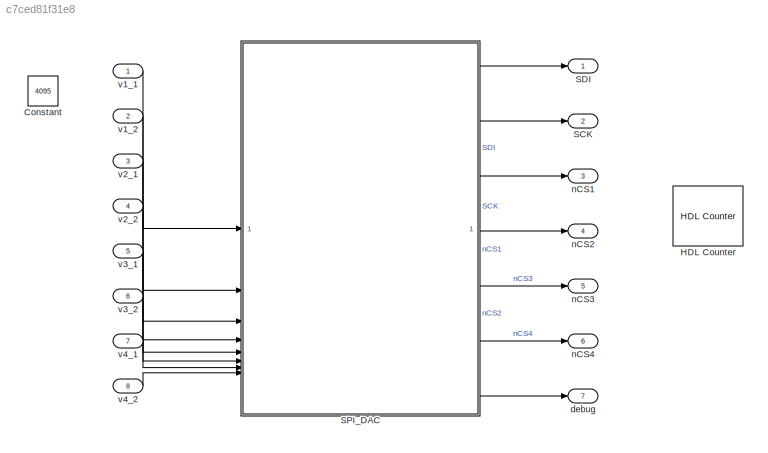
MODEL slx_c7ced81f31e8
KIND model
CONFIG AbsTol = auto
CONFIG EnableMultiTasking = off
CONFIG FixedStep = auto
CONFIG MaxStep = auto
CONFIG MinStep = auto
CONFIG RelTol = 1e-3
CONFIG SampleTimeConstraint = Unconstrained
CONFIG SolverName = VariableStepAuto
CONFIG StartTime = 0.0
CONFIG StopTime = 10.0
BLOCK [Constant] Constant
  Commented = on
  OutDataTypeStr = uint16
  Value = 4095
BLOCK [Reference] HDL Counter  REF=hdlsllib/Sources/HDL Counter
  Commented = on
  SourceBlock = hdlsllib/Sources/HDL Counter
  SourceType = HDL Counter
BLOCK [Outport] SCK
  Port = 2
BLOCK [Outport] SDI
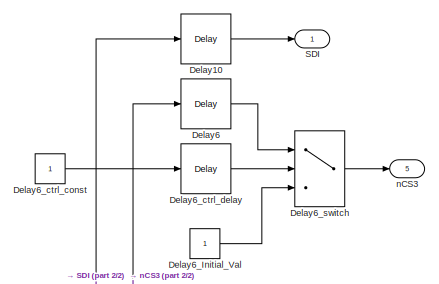
[diagram: SPI_DAC - part 1/2, top right region]
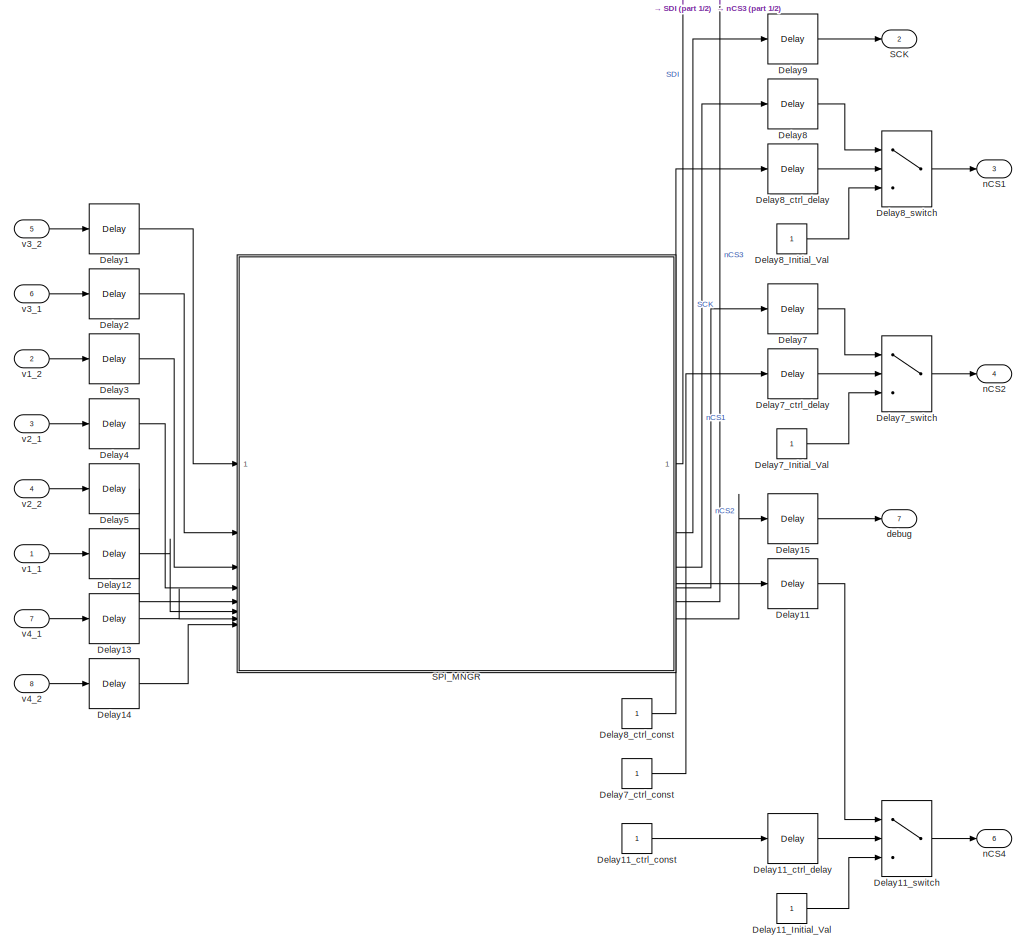
[diagram: SPI_DAC - part 2/2, most of the canvas]
BLOCK [SubSystem] SPI_DAC
  TreatAsAtomicUnit = on
BLOCK [Delay] SPI_DAC/Delay1
  DelayLength = double(1)
  InitialCondition = 0
  InputPortMap = u0
  SampleTime = 1.8e-06
BLOCK [Delay] SPI_DAC/Delay10
  DelayLength = double(1)
  InitialCondition = 0
  InputPortMap = u0
  SampleTime = 1.8e-06
BLOCK [Delay] SPI_DAC/Delay11
  DelayLength = double(1)
  InitialCondition = 0
  InputPortMap = u0
  SampleTime = 1.8e-06
BLOCK [Constant] SPI_DAC/Delay11_Initial_Val
  OutDataTypeStr = boolean
  SampleTime = 1.8e-06
BLOCK [Constant] SPI_DAC/Delay11_ctrl_const
  OutDataTypeStr = boolean
  SampleTime = 1.8e-06
BLOCK [Delay] SPI_DAC/Delay11_ctrl_delay
  DelayLength = double(1)
  InitialCondition = 0
  InputPortMap = u0
  SampleTime = 1.8e-06
BLOCK [Switch] SPI_DAC/Delay11_switch
  Criteria = u2 ~= 0
  InputSameDT = off
  OutDataTypeStr = boolean
  SampleTime = 1.8e-06
  SaturateOnIntegerOverflow = off
  Threshold = double(0)
BLOCK [Delay] SPI_DAC/Delay12
  DelayLength = double(1)
  InitialCondition = 0
  InputPortMap = u0
  SampleTime = 1.8e-06
BLOCK [Delay] SPI_DAC/Delay13
  DelayLength = double(1)
  InitialCondition = 0
  InputPortMap = u0
  SampleTime = 1.8e-06
BLOCK [Delay] SPI_DAC/Delay14
  DelayLength = double(1)
  InitialCondition = 0
  InputPortMap = u0
  SampleTime = 1.8e-06
BLOCK [Delay] SPI_DAC/Delay15
  DelayLength = double(1)
  InitialCondition = 0
  InputPortMap = u0
  SampleTime = 1.8e-06
BLOCK [Delay] SPI_DAC/Delay2
  DelayLength = double(1)
  InitialCondition = 0
  InputPortMap = u0
  SampleTime = 1.8e-06
BLOCK [Delay] SPI_DAC/Delay3
  DelayLength = double(1)
  InitialCondition = 0
  InputPortMap = u0
  SampleTime = 1.8e-06
BLOCK [Delay] SPI_DAC/Delay4
  DelayLength = double(1)
  InitialCondition = 0
  InputPortMap = u0
  SampleTime = 1.8e-06
BLOCK [Delay] SPI_DAC/Delay5
  DelayLength = double(1)
  InitialCondition = 0
  InputPortMap = u0
  SampleTime = 1.8e-06
BLOCK [Delay] SPI_DAC/Delay6
  DelayLength = double(1)
  InitialCondition = 0
  InputPortMap = u0
  SampleTime = 1.8e-06
BLOCK [Constant] SPI_DAC/Delay6_Initial_Val
  OutDataTypeStr = boolean
  SampleTime = 1.8e-06
BLOCK [Constant] SPI_DAC/Delay6_ctrl_const
  OutDataTypeStr = boolean
  SampleTime = 1.8e-06
BLOCK [Delay] SPI_DAC/Delay6_ctrl_delay
  DelayLength = double(1)
  InitialCondition = 0
  InputPortMap = u0
  SampleTime = 1.8e-06
BLOCK [Switch] SPI_DAC/Delay6_switch
  Criteria = u2 ~= 0
  InputSameDT = off
  OutDataTypeStr = boolean
  SampleTime = 1.8e-06
  SaturateOnIntegerOverflow = off
  Threshold = double(0)
BLOCK [Delay] SPI_DAC/Delay7
  DelayLength = double(1)
  InitialCondition = 0
  InputPortMap = u0
  SampleTime = 1.8e-06
BLOCK [Constant] SPI_DAC/Delay7_Initial_Val
  OutDataTypeStr = boolean
  SampleTime = 1.8e-06
BLOCK [Constant] SPI_DAC/Delay7_ctrl_const
  OutDataTypeStr = boolean
  SampleTime = 1.8e-06
BLOCK [Delay] SPI_DAC/Delay7_ctrl_delay
  DelayLength = double(1)
  InitialCondition = 0
  InputPortMap = u0
  SampleTime = 1.8e-06
BLOCK [Switch] SPI_DAC/Delay7_switch
  Criteria = u2 ~= 0
  InputSameDT = off
  OutDataTypeStr = boolean
  SampleTime = 1.8e-06
  SaturateOnIntegerOverflow = off
  Threshold = double(0)
BLOCK [Delay] SPI_DAC/Delay8
  DelayLength = double(1)
  InitialCondition = 0
  InputPortMap = u0
  SampleTime = 1.8e-06
BLOCK [Constant] SPI_DAC/Delay8_Initial_Val
  OutDataTypeStr = boolean
  SampleTime = 1.8e-06
BLOCK [Constant] SPI_DAC/Delay8_ctrl_const
  OutDataTypeStr = boolean
  SampleTime = 1.8e-06
BLOCK [Delay] SPI_DAC/Delay8_ctrl_delay
  DelayLength = double(1)
  InitialCondition = 0
  InputPortMap = u0
  SampleTime = 1.8e-06
BLOCK [Switch] SPI_DAC/Delay8_switch
  Criteria = u2 ~= 0
  InputSameDT = off
  OutDataTypeStr = boolean
  SampleTime = 1.8e-06
  SaturateOnIntegerOverflow = off
  Threshold = double(0)
BLOCK [Delay] SPI_DAC/Delay9
  DelayLength = double(1)
  InitialCondition = 0
  InputPortMap = u0
  SampleTime = 1.8e-06
BLOCK [Outport] SPI_DAC/SCK
  Port = 2
  SampleTime = 1.8e-06
BLOCK [Outport] SPI_DAC/SDI
  SampleTime = 1.8e-06
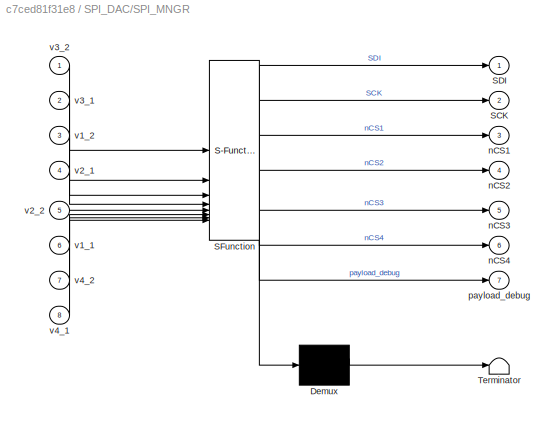
BLOCK [SubSystem] SPI_DAC/SPI_MNGR
  ErrorFcn = Stateflow.Translate.translate
  PermitHierarchicalResolution = ExplicitOnly
  SFBlockType = Chart
  TreatAsAtomicUnit = on
BLOCK [Demux] SPI_DAC/SPI_MNGR/ Demux 
  Outputs = 1
BLOCK [S-Function] SPI_DAC/SPI_MNGR/ SFunction 
  EnableBusSupport = on
  FunctionName = sf_sfun
  PortCounts = [8 8]
  SFcnIsStateOwnerBlock = off
  SFunctionDeploymentMode = off
  Tag = Stateflow S-Function 2
BLOCK [Terminator] SPI_DAC/SPI_MNGR/ Terminator 
BLOCK [Outport] SPI_DAC/SPI_MNGR/SCK
  Port = 2
BLOCK [Outport] SPI_DAC/SPI_MNGR/SDI
BLOCK [Outport] SPI_DAC/SPI_MNGR/nCS1
  Port = 3
BLOCK [Outport] SPI_DAC/SPI_MNGR/nCS2
  Port = 4
BLOCK [Outport] SPI_DAC/SPI_MNGR/nCS3
  Port = 5
BLOCK [Outport] SPI_DAC/SPI_MNGR/nCS4
  Port = 6
BLOCK [Outport] SPI_DAC/SPI_MNGR/payload_debug
  Port = 7
BLOCK [Inport] SPI_DAC/SPI_MNGR/v1_1
  Port = 6
BLOCK [Inport] SPI_DAC/SPI_MNGR/v1_2
  Port = 3
BLOCK [Inport] SPI_DAC/SPI_MNGR/v2_1
  Port = 4
BLOCK [Inport] SPI_DAC/SPI_MNGR/v2_2
  Port = 5
BLOCK [Inport] SPI_DAC/SPI_MNGR/v3_1
  Port = 2
BLOCK [Inport] SPI_DAC/SPI_MNGR/v3_2
BLOCK [Inport] SPI_DAC/SPI_MNGR/v4_1
  Port = 8
BLOCK [Inport] SPI_DAC/SPI_MNGR/v4_2
  Port = 7
BLOCK [Outport] SPI_DAC/debug
  Port = 7
  SampleTime = 1.8e-06
BLOCK [Outport] SPI_DAC/nCS1
  Port = 3
  SampleTime = 1.8e-06
BLOCK [Outport] SPI_DAC/nCS2
  Port = 4
  SampleTime = 1.8e-06
BLOCK [Outport] SPI_DAC/nCS3
  Port = 5
  SampleTime = 1.8e-06
BLOCK [Outport] SPI_DAC/nCS4
  Port = 6
  SampleTime = 1.8e-06
BLOCK [Inport] SPI_DAC/v1_1
  OutDataTypeStr = uint16
  PortDimensions = 1
  SampleTime = 1.8e-06
BLOCK [Inport] SPI_DAC/v1_2
  OutDataTypeStr = uint16
  Port = 2
  PortDimensions = 1
  SampleTime = 1.8e-06
BLOCK [Inport] SPI_DAC/v2_1
  OutDataTypeStr = uint16
  Port = 3
  PortDimensions = 1
  SampleTime = 1.8e-06
BLOCK [Inport] SPI_DAC/v2_2
  OutDataTypeStr = uint16
  Port = 4
  PortDimensions = 1
  SampleTime = 1.8e-06
BLOCK [Inport] SPI_DAC/v3_1
  OutDataTypeStr = uint16
  Port = 6
  PortDimensions = 1
  SampleTime = 1.8e-06
BLOCK [Inport] SPI_DAC/v3_2
  OutDataTypeStr = uint16
  Port = 5
  PortDimensions = 1
  SampleTime = 1.8e-06
BLOCK [Inport] SPI_DAC/v4_1
  OutDataTypeStr = uint16
  Port = 7
  PortDimensions = 1
  SampleTime = 1.8e-06
BLOCK [Inport] SPI_DAC/v4_2
  OutDataTypeStr = uint16
  Port = 8
  PortDimensions = 1
  SampleTime = 1.8e-06
BLOCK [Outport] debug
  Port = 7
BLOCK [Outport] nCS1
  Port = 3
BLOCK [Outport] nCS2
  Port = 4
BLOCK [Outport] nCS3
  Port = 5
BLOCK [Outport] nCS4
  Port = 6
BLOCK [Inport] v1_1
BLOCK [Inport] v1_2
  Port = 2
BLOCK [Inport] v2_1
  Port = 3
BLOCK [Inport] v2_2
  Port = 4
BLOCK [Inport] v3_1
  Port = 5
BLOCK [Inport] v3_2
  Port = 6
BLOCK [Inport] v4_1
  Port = 7
BLOCK [Inport] v4_2
  Port = 8
LINE SPI_DAC/Delay10:1 -> SPI_DAC/SDI:1
LINE SPI_DAC/Delay11:1 -> SPI_DAC/Delay11_switch:1
LINE SPI_DAC/Delay11_Initial_Val:1 -> SPI_DAC/Delay11_switch:3
LINE SPI_DAC/Delay11_ctrl_const:1 -> SPI_DAC/Delay11_ctrl_delay:1
LINE SPI_DAC/Delay11_ctrl_delay:1 -> SPI_DAC/Delay11_switch:2
LINE SPI_DAC/Delay11_switch:1 -> SPI_DAC/nCS4:1
LINE SPI_DAC/Delay12:1 -> SPI_DAC/SPI_MNGR:6
LINE SPI_DAC/Delay13:1 -> SPI_DAC/SPI_MNGR:7
LINE SPI_DAC/Delay14:1 -> SPI_DAC/SPI_MNGR:8
LINE SPI_DAC/Delay15:1 -> SPI_DAC/debug:1
LINE SPI_DAC/Delay1:1 -> SPI_DAC/SPI_MNGR:1
LINE SPI_DAC/Delay2:1 -> SPI_DAC/SPI_MNGR:2
LINE SPI_DAC/Delay3:1 -> SPI_DAC/SPI_MNGR:3
LINE SPI_DAC/Delay4:1 -> SPI_DAC/SPI_MNGR:4
LINE SPI_DAC/Delay5:1 -> SPI_DAC/SPI_MNGR:5
LINE SPI_DAC/Delay6:1 -> SPI_DAC/Delay6_switch:1
LINE SPI_DAC/Delay6_Initial_Val:1 -> SPI_DAC/Delay6_switch:3
LINE SPI_DAC/Delay6_ctrl_const:1 -> SPI_DAC/Delay6_ctrl_delay:1
LINE SPI_DAC/Delay6_ctrl_delay:1 -> SPI_DAC/Delay6_switch:2
LINE SPI_DAC/Delay6_switch:1 -> SPI_DAC/nCS3:1
LINE SPI_DAC/Delay7:1 -> SPI_DAC/Delay7_switch:1
LINE SPI_DAC/Delay7_Initial_Val:1 -> SPI_DAC/Delay7_switch:3
LINE SPI_DAC/Delay7_ctrl_const:1 -> SPI_DAC/Delay7_ctrl_delay:1
LINE SPI_DAC/Delay7_ctrl_delay:1 -> SPI_DAC/Delay7_switch:2
LINE SPI_DAC/Delay7_switch:1 -> SPI_DAC/nCS2:1
LINE SPI_DAC/Delay8:1 -> SPI_DAC/Delay8_switch:1
LINE SPI_DAC/Delay8_Initial_Val:1 -> SPI_DAC/Delay8_switch:3
LINE SPI_DAC/Delay8_ctrl_const:1 -> SPI_DAC/Delay8_ctrl_delay:1
LINE SPI_DAC/Delay8_ctrl_delay:1 -> SPI_DAC/Delay8_switch:2
LINE SPI_DAC/Delay8_switch:1 -> SPI_DAC/nCS1:1
LINE SPI_DAC/Delay9:1 -> SPI_DAC/SCK:1
LINE SPI_DAC/SPI_MNGR:1 -> SPI_DAC/Delay10:1
LINE SPI_DAC/SPI_MNGR:2 -> SPI_DAC/Delay9:1
LINE SPI_DAC/SPI_MNGR:3 -> SPI_DAC/Delay8:1
LINE SPI_DAC/SPI_MNGR:4 -> SPI_DAC/Delay7:1
LINE SPI_DAC/SPI_MNGR:5 -> SPI_DAC/Delay6:1
LINE SPI_DAC/SPI_MNGR:6 -> SPI_DAC/Delay11:1
LINE SPI_DAC/SPI_MNGR:7 -> SPI_DAC/Delay15:1
LINE SPI_DAC/v1_1:1 -> SPI_DAC/Delay12:1
LINE SPI_DAC/v1_2:1 -> SPI_DAC/Delay3:1
LINE SPI_DAC/v2_1:1 -> SPI_DAC/Delay4:1
LINE SPI_DAC/v2_2:1 -> SPI_DAC/Delay5:1
LINE SPI_DAC/v3_1:1 -> SPI_DAC/Delay2:1
LINE SPI_DAC/v3_2:1 -> SPI_DAC/Delay1:1
LINE SPI_DAC/v4_1:1 -> SPI_DAC/Delay13:1
LINE SPI_DAC/v4_2:1 -> SPI_DAC/Delay14:1
LINE SPI_DAC:1 -> SDI:1
LINE SPI_DAC:2 -> SCK:1
LINE SPI_DAC:3 -> nCS1:1
LINE SPI_DAC:4 -> nCS2:1
LINE SPI_DAC:5 -> nCS3:1
LINE SPI_DAC:6 -> nCS4:1
LINE SPI_DAC:7 -> debug:1
LINE v1_1:1 -> SPI_DAC:1
LINE v1_2:1 -> SPI_DAC:2
LINE v2_1:1 -> SPI_DAC:3
LINE v2_2:1 -> SPI_DAC:4
LINE v3_1:1 -> SPI_DAC:5
LINE v3_2:1 -> SPI_DAC:6
LINE v4_1:1 -> SPI_DAC:7
LINE v4_2:1 -> SPI_DAC:8
CHART SPI_DAC/SPI_MNGR states=16 transitions=64
  STATE_LABEL 'on\nSDI=false;\nSCK=false;\nnCS1=true;\nnCS2=true;\nnCS3=true;\nnCS4=true;\nselector = 1;\n'
  STATE_LABEL 'off\nr_v11 = v1_1;\nr_v12 = v1_2;\nr_v21 = v2_1;\nr_v22 = v2_2;\nr_v31 = v3_1;\nr_v32 = v3_2;\nr_v41 = v4_1;\nr_v42 = v4_2;\n'
  STATE_LABEL 'cont_bits2 = simfcn1(vx)'
  STATE_LABEL 'SCRIPT:\nfunction cont_bits2 = simfcn1(vx)\n\n    % cont_bits2 = int2bit(vx,12,1);\ncont_bits2  = zeros(1,12)&0;\nall_1 = uint16(0b1);\ncont_bits2(12) = bitshift(bitand(all_1,vx),0);\n\nall_2 = uint16(0b10);\ncont_bits2(11) =bitshift(bitand(all_2,vx),-1);\n\nall_3 = uint16(0b100);\ncont_bits2(10) =bitshift(bitand(all_3,vx),-2);\n\nall_4 = uint16(0b1000);\ncont_bits2(9) =bitshift(bitand(all_4,vx),-3);\n\nall_5 = ui...<+609ch>'
  STATE_LABEL "toBsend_v1_1\ncont_bits = [simfcn1(r_v11)]';\npayload=[false true true true cont_bits(1:12)']';\nnCS1=false;\nnCS2=true;\nnCS3=true;\nnCS4=true;\n"
  STATE_LABEL "toBsend_v1_2\ncont_bits_12 = [simfcn1(r_v12)]';\npayload=[true true true true cont_bits_12(1:12)']';\nnCS1=false;\nnCS2=true;\nnCS3=true;\nnCS4=true;\n"
  STATE_LABEL "toBsend_v2_1\ncont_bits_21 = [simfcn1(r_v21)]';\npayload=[false true true true cont_bits_21(1:12)']';\nnCS1=true;\nnCS2=false;\nnCS3=true;\nnCS4=true;\n"
  STATE_LABEL "toBsend_v2_2\ncont_bits_22 = [simfcn1(r_v22)]';\npayload=[true true true true cont_bits_22(1:12)']';\nnCS1=true;\nnCS2=false;\nnCS3=true;\nnCS4=true;\n"
  STATE_LABEL "toBsend_v3_1\ncont_bits_31 = [simfcn1(r_v31)]';\npayload=[false true true true cont_bits_31(1:12)']';\nnCS1=true;\nnCS2=true;\nnCS3=false;\nnCS4=true;\n"
  STATE_LABEL "toBsend_v3_2\ncont_bits_32 = [simfcn1(r_v32)]';\npayload=[true true true true cont_bits_32(1:12)']';\nnCS1=true;\nnCS2=true;\nnCS3=false;\nnCS4=true;\n"
  STATE_LABEL "toBsend_v4_1\ncont_bits_41 = [simfcn1(r_v41)]';\npayload=[false true true true cont_bits_41(1:12)']';\nnCS1=true;\nnCS2=true;\nnCS3=true;\nnCS4=false;\n"
  STATE_LABEL "toBsend_v3_3\ncont_bits_42 = [simfcn1(r_v42)]';\npayload=[true true true true cont_bits_42(1:12)']';\nnCS1=true;\nnCS2=true;\nnCS3=true;\nnCS4=false;\n"
  STATE_LABEL 'sender_pre_SCK\n\nSDI=payload(cnt);\nSCK=false;\n'
  STATE_LABEL 'sender_at_SCK\n\nSDI=payload(cnt);\nSCK=true;\n'
  STATE_LABEL 'NOP\nSCK=false;\n'
  STATE_LABEL 'sender_at_SCK1\nSDI=false;\nnCS1=true;\nnCS2=true;\nnCS3=true;\nnCS4=true;\npayload_debug= payload;\n'
  STATE_LABEL 'NOP1'
CHART  states=0 transitions=0
